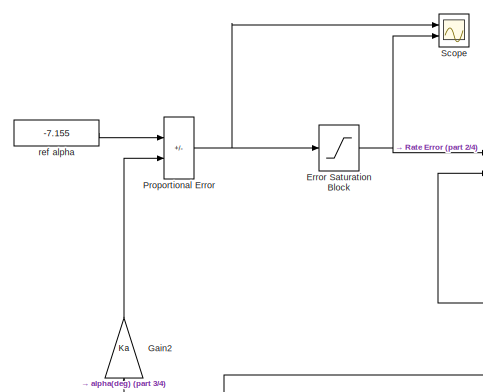
[diagram: root canvas - part 1/4, top left region]
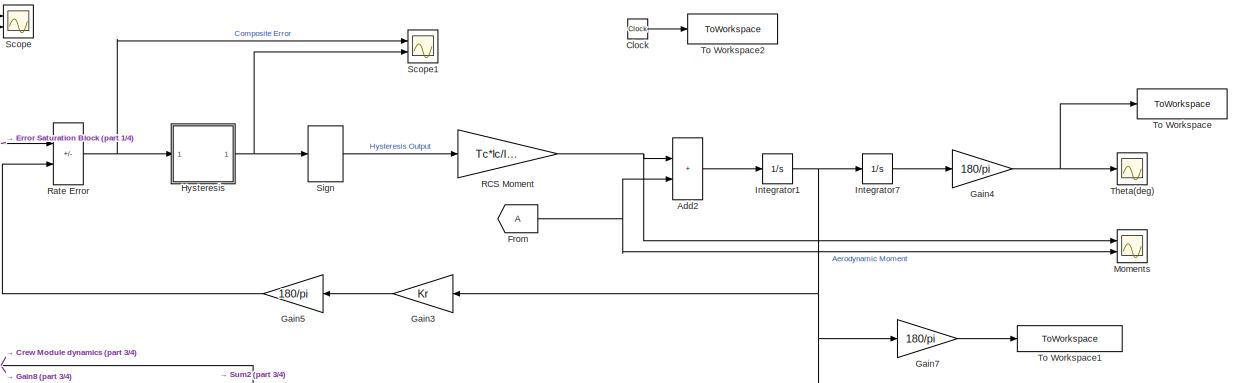
[diagram: root canvas - part 2/4, top center region]
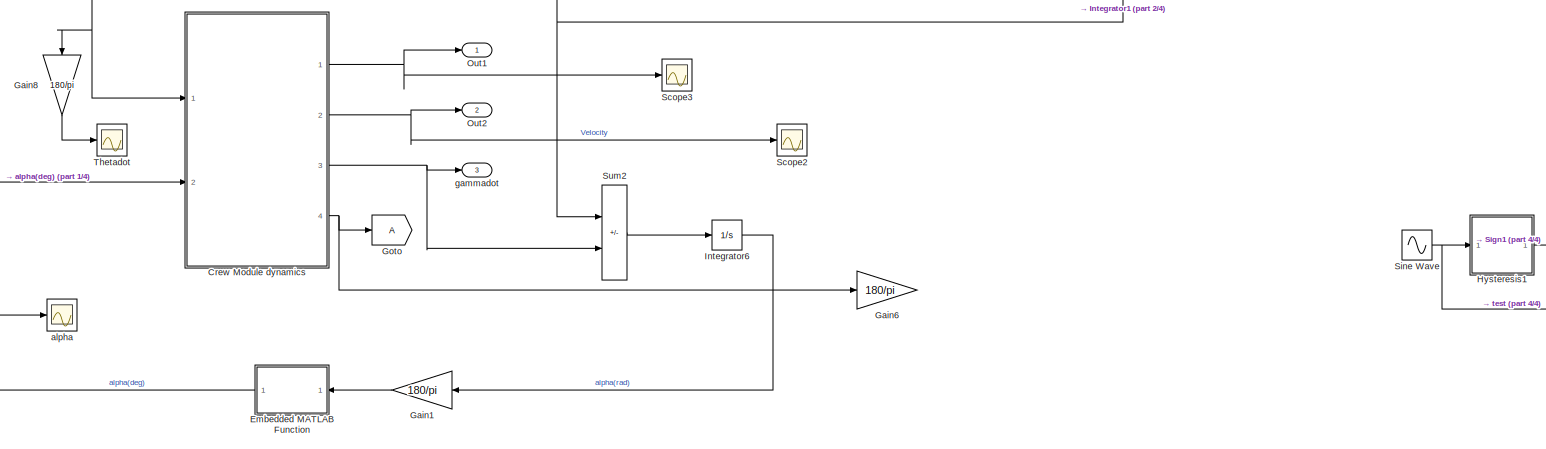
[diagram: root canvas - part 3/4, full width, bottom band]
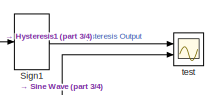
[diagram: root canvas - part 4/4, bottom right region]
MODEL slx_d98ad95d32de
KIND model
CONFIG AbsTol = auto
CONFIG EnableMultiTasking = off
CONFIG FixedStep = 0.01
CONFIG MaxStep = auto
CONFIG MinStep = auto
CONFIG RelTol = 1e-3
CONFIG SampleTimeConstraint = Unconstrained
CONFIG Solver = ode4
CONFIG SolverName = ode4
CONFIG StartTime = 0.0
CONFIG StopTime = 200
BLOCK [Sum] Add2
  IconShape = rectangular
  Ports = [2, 1]
BLOCK [Clock] Clock
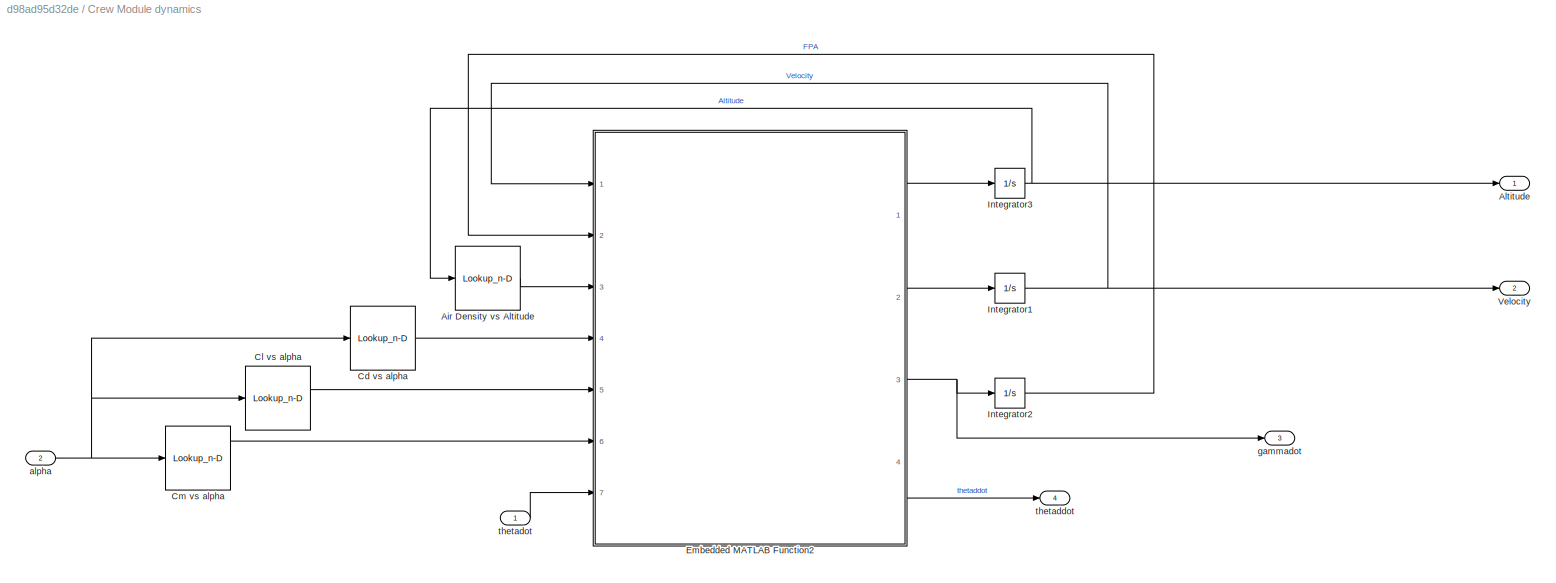
BLOCK [SubSystem] Crew Module dynamics
  Ports = [2, 4]
  RequestExecContextInheritance = off
BLOCK [Lookup_n-D] Crew Module dynamics/Air Density vs Altitude
  BreakpointsForDimension1 = [0,1000,2000,3000,4000,5000,6000,7000,8000,9000,10000,12000,15000]
  InternalRulePriority = Speed
  NumberOfTableDimensions = 1
  Ports = [1, 1]
  RndMeth = Simplest
  Table = [1.225,1.11164,1.00649,0.909122,0.819129,0.736116,0.659697,0.589501,0.525168,0.466348,0.412707,0.310828,0.193674]
BLOCK [Outport] Crew Module dynamics/Altitude
BLOCK [Lookup_n-D] Crew Module dynamics/Cd vs alpha
  BreakpointsForDimension1 = alpha
  NumberOfTableDimensions = 1
  Ports = [1, 1]
  RndMeth = Simplest
  Table = Cd
BLOCK [Lookup_n-D] Crew Module dynamics/Cl vs alpha
  BreakpointsForDimension1 = alpha
  NumberOfTableDimensions = 1
  Ports = [1, 1]
  RndMeth = Simplest
  Table = Cl
BLOCK [Lookup_n-D] Crew Module dynamics/Cm vs alpha
  BreakpointsForDimension1 = alpha
  NumberOfTableDimensions = 1
  Ports = [1, 1]
  RndMeth = Simplest
  Table = Cmcg
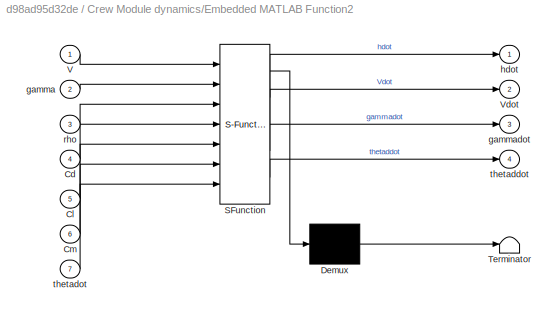
BLOCK [SubSystem] Crew Module dynamics/Embedded MATLAB Function2
  ErrorFcn = Stateflow.Translate.translate
  PermitHierarchicalResolution = ExplicitOnly
  Ports = [7, 4]
  RequestExecContextInheritance = off
  SFBlockType = MATLAB Function
  TreatAsAtomicUnit = on
BLOCK [Demux] Crew Module dynamics/Embedded MATLAB Function2/ Demux 
  Outputs = 1
  Ports = [1, 1]
BLOCK [S-Function] Crew Module dynamics/Embedded MATLAB Function2/ SFunction 
  EnableBusSupport = on
  FunctionName = sf_sfun
  Parameters = A,Cmalphadot,Cmq,D,Iyy,R,g,m
  PortCounts = [7 5]
  Ports = [7, 5]
  SFcnIsStateOwnerBlock = off
  SFunctionDeploymentMode = off
  Tag = Stateflow S-Function 5
BLOCK [Terminator] Crew Module dynamics/Embedded MATLAB Function2/ Terminator 
BLOCK [Inport] Crew Module dynamics/Embedded MATLAB Function2/Cd
  Port = 4
BLOCK [Inport] Crew Module dynamics/Embedded MATLAB Function2/Cl
  Port = 5
BLOCK [Inport] Crew Module dynamics/Embedded MATLAB Function2/Cm
  Port = 6
BLOCK [Inport] Crew Module dynamics/Embedded MATLAB Function2/V
BLOCK [Outport] Crew Module dynamics/Embedded MATLAB Function2/Vdot
  Port = 2
BLOCK [Inport] Crew Module dynamics/Embedded MATLAB Function2/gamma
  Port = 2
BLOCK [Outport] Crew Module dynamics/Embedded MATLAB Function2/gammadot
  Port = 3
BLOCK [Outport] Crew Module dynamics/Embedded MATLAB Function2/hdot
BLOCK [Inport] Crew Module dynamics/Embedded MATLAB Function2/rho
  Port = 3
BLOCK [Outport] Crew Module dynamics/Embedded MATLAB Function2/thetaddot
  Port = 4
BLOCK [Inport] Crew Module dynamics/Embedded MATLAB Function2/thetadot
  Port = 7
BLOCK [Integrator] Crew Module dynamics/Integrator1
  InitialCondition = 68
  Ports = [1, 1]
BLOCK [Integrator] Crew Module dynamics/Integrator2
  InitialCondition = 1*pi/180
  Ports = [1, 1]
BLOCK [Integrator] Crew Module dynamics/Integrator3
  InitialCondition = 13240
  Ports = [1, 1]
BLOCK [Outport] Crew Module dynamics/Velocity
  Port = 2
BLOCK [Inport] Crew Module dynamics/alpha
  Port = 2
BLOCK [Outport] Crew Module dynamics/gammadot
  Port = 3
BLOCK [Outport] Crew Module dynamics/thetaddot
  Port = 4
BLOCK [Inport] Crew Module dynamics/thetadot
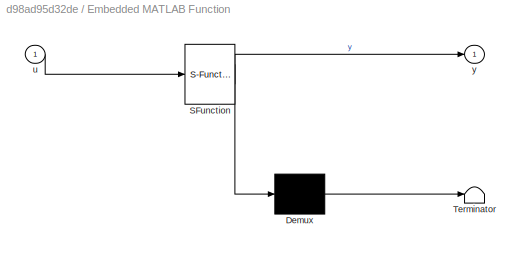
BLOCK [SubSystem] Embedded MATLAB Function
  ErrorFcn = Stateflow.Translate.translate
  NameLocation = top
  PermitHierarchicalResolution = ExplicitOnly
  Ports = [1, 1]
  RequestExecContextInheritance = off
  SFBlockType = MATLAB Function
  TreatAsAtomicUnit = on
BLOCK [Demux] Embedded MATLAB Function/ Demux 
  Outputs = 1
  Ports = [1, 1]
BLOCK [S-Function] Embedded MATLAB Function/ SFunction 
  EnableBusSupport = on
  FunctionName = sf_sfun
  PortCounts = [1 2]
  Ports = [1, 2]
  SFcnIsStateOwnerBlock = off
  SFunctionDeploymentMode = off
  Tag = Stateflow S-Function 3
BLOCK [Terminator] Embedded MATLAB Function/ Terminator 
BLOCK [Inport] Embedded MATLAB Function/u
BLOCK [Outport] Embedded MATLAB Function/y
BLOCK [Saturate] Error Saturation Block
  LowerLimit = -RCL
  UpperLimit = RCL
BLOCK [From] From
BLOCK [Gain] Gain1
  Gain = 180/pi
  OutDataTypeStr = Inherit: Same as input
  ParamDataTypeStr = Inherit: Same as input
  SaturateOnIntegerOverflow = on
BLOCK [Gain] Gain2
  Gain = Ka
  NameLocation = left
  OutDataTypeStr = Inherit: Same as input
  ParamDataTypeStr = Inherit: Same as input
  SaturateOnIntegerOverflow = on
BLOCK [Gain] Gain3
  Gain = Kr
  OutDataTypeStr = Inherit: Same as input
  ParamDataTypeStr = Inherit: Same as input
  SaturateOnIntegerOverflow = on
BLOCK [Gain] Gain4
  Gain = 180/pi
  NameLocation = top
  OutDataTypeStr = Inherit: Same as input
  ParamDataTypeStr = Inherit: Same as input
  SaturateOnIntegerOverflow = on
BLOCK [Gain] Gain5
  Gain = 180/pi
  OutDataTypeStr = Inherit: Same as input
  ParamDataTypeStr = Inherit: Same as input
  SaturateOnIntegerOverflow = on
BLOCK [Gain] Gain6
  Gain = 180/pi
  NameLocation = top
  OutDataTypeStr = Inherit: Same as input
  ParamDataTypeStr = Inherit: Same as input
  SaturateOnIntegerOverflow = on
BLOCK [Gain] Gain7
  Gain = 180/pi
  NameLocation = top
  OutDataTypeStr = Inherit: Same as input
  ParamDataTypeStr = Inherit: Same as input
  SaturateOnIntegerOverflow = on
BLOCK [Gain] Gain8
  Gain = 180/pi
  NameLocation = right
  OutDataTypeStr = Inherit: Same as input
  ParamDataTypeStr = Inherit: Same as input
  SaturateOnIntegerOverflow = on
BLOCK [Goto] Goto
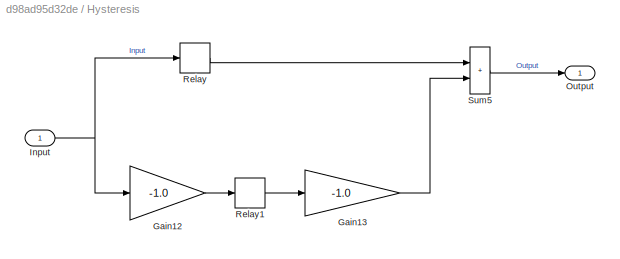
BLOCK [SubSystem] Hysteresis
  Ports = [1, 1]
  RequestExecContextInheritance = off
BLOCK [Gain] Hysteresis/Gain12
  Gain = -1.0
  OutDataTypeStr = Inherit: Same as input
  ParamDataTypeStr = Inherit: Same as input
  SaturateOnIntegerOverflow = on
BLOCK [Gain] Hysteresis/Gain13
  Gain = -1.0
  OutDataTypeStr = Inherit: Same as input
  ParamDataTypeStr = Inherit: Same as input
  SaturateOnIntegerOverflow = on
BLOCK [Inport] Hysteresis/Input
BLOCK [Outport] Hysteresis/Output
BLOCK [Relay] Hysteresis/Relay
  OffSwitchValue = LTP
  OnSwitchValue = UTP
BLOCK [Relay] Hysteresis/Relay1
  OffSwitchValue = LTP
  OnSwitchValue = UTP
BLOCK [Sum] Hysteresis/Sum5
  IconShape = rectangular
  InputSameDT = on
  OutDataTypeStr = Inherit: Same as first input
  Ports = [2, 1]
  SaturateOnIntegerOverflow = on
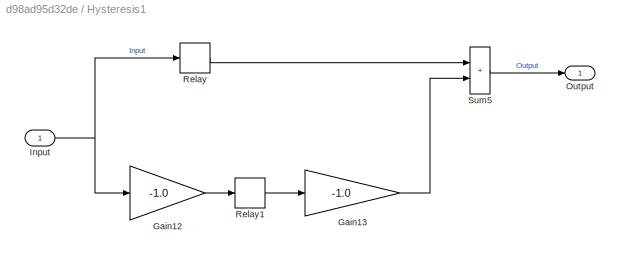
BLOCK [SubSystem] Hysteresis1
  Commented = through
  Ports = [1, 1]
  RequestExecContextInheritance = off
BLOCK [Gain] Hysteresis1/Gain12
  Gain = -1.0
  OutDataTypeStr = Inherit: Same as input
  ParamDataTypeStr = Inherit: Same as input
  SaturateOnIntegerOverflow = on
BLOCK [Gain] Hysteresis1/Gain13
  Gain = -1.0
  OutDataTypeStr = Inherit: Same as input
  ParamDataTypeStr = Inherit: Same as input
  SaturateOnIntegerOverflow = on
BLOCK [Inport] Hysteresis1/Input
BLOCK [Outport] Hysteresis1/Output
BLOCK [Relay] Hysteresis1/Relay
  OffSwitchValue = LTP
  OnSwitchValue = UTP
BLOCK [Relay] Hysteresis1/Relay1
  OffSwitchValue = LTP
  OnSwitchValue = UTP
BLOCK [Sum] Hysteresis1/Sum5
  IconShape = rectangular
  InputSameDT = on
  OutDataTypeStr = Inherit: Same as first input
  Ports = [2, 1]
  SaturateOnIntegerOverflow = on
BLOCK [Integrator] Integrator1
  Ports = [1, 1]
BLOCK [Integrator] Integrator6
  InitialCondition = 150*pi/180
  Ports = [1, 1]
BLOCK [Integrator] Integrator7
  InitialCondition = -2*pi/180
  Ports = [1, 1]
BLOCK [Scope] Moments
  Floating = off
  NumInputPorts = 2
  Ports = [2]
  ScopeSpecificationString = Simulink.scopes.TimeScopeBlockCfg('CurrentConfiguration', extmgr.ConfigurationSet(extmgr.Configuration('Core','General UI',true),extmgr.Configuration('Core','Source UI',true),extmgr.Configuration('Sources','WiredSimulink',true,'DataLoggingVariableName','ScopeData3'),extmgr.Configuration('Visuals','Time Domain',true,'SerializedDisplays',{struct('MinYLimReal','-2.07581','MaxYLimReal','1.90453','YLab...<+1435ch>
BLOCK [Outport] Out1
BLOCK [Outport] Out2
  Port = 2
BLOCK [Sum] Proportional Error
  IconShape = rectangular
  Inputs = +-
  Ports = [2, 1]
BLOCK [Gain] RCS Moment
  Gain = Tc*lc/Iyy
  NameLocation = top
  OutDataTypeStr = Inherit: Same as input
  ParamDataTypeStr = Inherit: Same as input
  SaturateOnIntegerOverflow = on
BLOCK [Sum] Rate Error
  IconShape = rectangular
  Inputs = +-
  Ports = [2, 1]
BLOCK [Scope] Scope
  Floating = off
  NumInputPorts = 2
  Ports = [2]
  ScopeSpecificationString = Simulink.scopes.TimeScopeBlockCfg('CurrentConfiguration', extmgr.ConfigurationSet(extmgr.Configuration('Core','General UI',true),extmgr.Configuration('Core','Source UI',true),extmgr.Configuration('Sources','WiredSimulink',true,'DataLoggingVariableName','ScopeData4'),extmgr.Configuration('Visuals','Time Domain',true,'SerializedDisplays',{struct('MinYLimReal','-192.92303','MaxYLimReal','150.74598','...<+1460ch>
BLOCK [Scope] Scope1
  Floating = off
  NumInputPorts = 2
  Ports = [2]
  ScopeSpecificationString = Simulink.scopes.TimeScopeBlockCfg('CurrentConfiguration', extmgr.ConfigurationSet(extmgr.Configuration('Core','General UI',true),extmgr.Configuration('Core','Source UI',true),extmgr.Configuration('Sources','WiredSimulink',true,'DataLoggingVariableName','ScopeData5'),extmgr.Configuration('Visuals','Time Domain',true,'SerializedDisplays',{struct('MinYLimReal','-17.97148','MaxYLimReal','31.74335','YL...<+1493ch>
BLOCK [Scope] Scope2
  Floating = off
  NumInputPorts = 1
  Ports = [1]
  ScopeSpecificationString = Simulink.scopes.TimeScopeBlockCfg('CurrentConfiguration', extmgr.ConfigurationSet(extmgr.Configuration('Core','General UI',true),extmgr.Configuration('Core','Source UI',true),extmgr.Configuration('Sources','WiredSimulink',true,'DataLoggingVariableName','ScopeData2'),extmgr.Configuration('Visuals','Time Domain',true,'SerializedDisplays',{struct('MinYLimReal','52.48862','MaxYLimReal','151.87606','YL...<+1377ch>
BLOCK [Scope] Scope3
  Floating = off
  NumInputPorts = 1
  Ports = [1]
  ScopeSpecificationString = Simulink.scopes.TimeScopeBlockCfg('CurrentConfiguration', extmgr.ConfigurationSet(extmgr.Configuration('Core','General UI',true),extmgr.Configuration('Core','Source UI',true),extmgr.Configuration('Sources','WiredSimulink',true,'DataLoggingVariableName','ScopeData7'),extmgr.Configuration('Visuals','Time Domain',true,'SerializedDisplays',{struct('MinYLimReal','-6695.15088','MaxYLimReal','15455.09232...<+1414ch>
BLOCK [Signum] Sign
  ZeroCross = off
BLOCK [Signum] Sign1
  Commented = through
  ZeroCross = off
BLOCK [Sin] Sine Wave
  Amplitude = 10
  Ports = [0, 1]
  SampleTime = 0
BLOCK [Sum] Sum2
  IconShape = rectangular
  InputSameDT = on
  Inputs = +-
  OutDataTypeStr = Inherit: Same as first input
  Ports = [2, 1]
  SaturateOnIntegerOverflow = on
BLOCK [Scope] Theta(deg)
  Floating = off
  NumInputPorts = 1
  Ports = [1]
  ScopeSpecificationString = Simulink.scopes.TimeScopeBlockCfg('CurrentConfiguration', extmgr.ConfigurationSet(extmgr.Configuration('Core','General UI',true),extmgr.Configuration('Core','Source UI',true),extmgr.Configuration('Sources','WiredSimulink',true),extmgr.Configuration('Visuals','Time Domain',true,'SerializedDisplays',{struct('MinYLimReal','-366.63431','MaxYLimReal','38.51492','YLabelReal','','MinYLimMag',' 0.00000','...<+1337ch>
BLOCK [Scope] Thetadot
  Floating = off
  NumInputPorts = 1
  Ports = [1]
  ScopeSpecificationString = Simulink.scopes.TimeScopeBlockCfg('CurrentConfiguration', extmgr.ConfigurationSet(extmgr.Configuration('Core','General UI',true),extmgr.Configuration('Core','Source UI',true),extmgr.Configuration('Sources','WiredSimulink',true,'DataLoggingVariableName','ScopeData8'),extmgr.Configuration('Visuals','Time Domain',true,'SerializedDisplays',{struct('MinYLimReal','-16.42157','MaxYLimReal','7.96787','YLa...<+1439ch>
BLOCK [ToWorkspace] To Workspace
  FixptAsFi = on
  MaxDataPoints = inf
  Ports = [1]
  SampleTime = -1
  VariableName = theta_sim
BLOCK [ToWorkspace] To Workspace1
  FixptAsFi = on
  MaxDataPoints = inf
  Ports = [1]
  SampleTime = -1
  VariableName = thetadot_sim
BLOCK [ToWorkspace] To Workspace2
  FixptAsFi = on
  MaxDataPoints = inf
  Ports = [1]
  SampleTime = -1
  VariableName = time_sim
BLOCK [Scope] alpha
  Floating = off
  NumInputPorts = 1
  Ports = [1]
  ScopeSpecificationString = Simulink.scopes.TimeScopeBlockCfg('CurrentConfiguration', extmgr.ConfigurationSet(extmgr.Configuration('Core','General UI',true),extmgr.Configuration('Core','Source UI',true),extmgr.Configuration('Sources','WiredSimulink',true,'DataLoggingVariableName','ScopeData1'),extmgr.Configuration('Visuals','Time Domain',true,'SerializedDisplays',{struct('MinYLimReal','-159.9753','MaxYLimReal','185.99772','Y...<+1481ch>
BLOCK [Outport] gammadot
  Port = 3
BLOCK [Constant] ref alpha
  Value = -7.155
BLOCK [Scope] test
  Floating = off
  NumInputPorts = 2
  Ports = [2]
  ScopeSpecificationString = Simulink.scopes.TimeScopeBlockCfg('CurrentConfiguration', extmgr.ConfigurationSet(extmgr.Configuration('Core','General UI',true),extmgr.Configuration('Core','Source UI',true),extmgr.Configuration('Sources','WiredSimulink',true,'DataLoggingVariableName','ScopeData6'),extmgr.Configuration('Visuals','Time Domain',true,'SerializedDisplays',{struct('MinYLimReal','-1.10211','MaxYLimReal','1.03652','YLab...<+1811ch>
LINE Add2:1 -> Integrator1:1
LINE Clock:1 -> To Workspace2:1
LINE Crew Module dynamics/Air Density vs Altitude:1 -> Crew Module dynamics/Embedded MATLAB Function2:3
LINE Crew Module dynamics/Cd vs alpha:1 -> Crew Module dynamics/Embedded MATLAB Function2:4
LINE Crew Module dynamics/Cl vs alpha:1 -> Crew Module dynamics/Embedded MATLAB Function2:5
LINE Crew Module dynamics/Cm vs alpha:1 -> Crew Module dynamics/Embedded MATLAB Function2:6
LINE Crew Module dynamics/Embedded MATLAB Function2:1 -> Crew Module dynamics/Integrator3:1
LINE Crew Module dynamics/Embedded MATLAB Function2:2 -> Crew Module dynamics/Integrator1:1
NET Crew Module dynamics/Embedded MATLAB Function2:3 -> Crew Module dynamics/Integrator2:1, Crew Module dynamics/gammadot:1
LINE Crew Module dynamics/Embedded MATLAB Function2:4 -> Crew Module dynamics/thetaddot:1
NET Crew Module dynamics/Integrator1:1 -> Crew Module dynamics/Embedded MATLAB Function2:1, Crew Module dynamics/Velocity:1
LINE Crew Module dynamics/Integrator2:1 -> Crew Module dynamics/Embedded MATLAB Function2:2
NET Crew Module dynamics/Integrator3:1 -> Crew Module dynamics/Air Density vs Altitude:1, Crew Module dynamics/Altitude:1
NET Crew Module dynamics/alpha:1 -> Crew Module dynamics/Cd vs alpha:1, Crew Module dynamics/Cl vs alpha:1, Crew Module dynamics/Cm vs alpha:1
LINE Crew Module dynamics/thetadot:1 -> Crew Module dynamics/Embedded MATLAB Function2:7
NET Crew Module dynamics:1 -> Out1:1, Scope3:1
NET Crew Module dynamics:2 -> Out2:1, Scope2:1
NET Crew Module dynamics:3 -> Sum2:2, gammadot:1
NET Crew Module dynamics:4 -> Gain6:1, Goto:1
NET Embedded MATLAB Function:1 -> Crew Module dynamics:2, Gain2:1, alpha:1
NET Error Saturation Block:1 -> Rate Error:1, Scope:2
NET From:1 -> Add2:2, Moments:2
LINE Gain1:1 -> Embedded MATLAB Function:1
LINE Gain2:1 -> Proportional Error:2
LINE Gain3:1 -> Gain5:1
NET Gain4:1 -> Theta(deg):1, To Workspace:1
LINE Gain5:1 -> Rate Error:2
LINE Gain7:1 -> To Workspace1:1
LINE Gain8:1 -> Thetadot:1
LINE Hysteresis/Gain12:1 -> Hysteresis/Relay1:1
LINE Hysteresis/Gain13:1 -> Hysteresis/Sum5:2
NET Hysteresis/Input:1 -> Hysteresis/Gain12:1, Hysteresis/Relay:1
LINE Hysteresis/Relay1:1 -> Hysteresis/Gain13:1
LINE Hysteresis/Relay:1 -> Hysteresis/Sum5:1
LINE Hysteresis/Sum5:1 -> Hysteresis/Output:1
LINE Hysteresis1/Gain12:1 -> Hysteresis1/Relay1:1
LINE Hysteresis1/Gain13:1 -> Hysteresis1/Sum5:2
NET Hysteresis1/Input:1 -> Hysteresis1/Gain12:1, Hysteresis1/Relay:1
LINE Hysteresis1/Relay1:1 -> Hysteresis1/Gain13:1
LINE Hysteresis1/Relay:1 -> Hysteresis1/Sum5:1
LINE Hysteresis1/Sum5:1 -> Hysteresis1/Output:1
LINE Hysteresis1:1 -> Sign1:1
NET Hysteresis:1 -> Scope1:2, Sign:1
NET Integrator1:1 -> Crew Module dynamics:1, Gain3:1, Gain7:1, Gain8:1, Integrator7:1, Sum2:1
LINE Integrator6:1 -> Gain1:1
LINE Integrator7:1 -> Gain4:1
NET Proportional Error:1 -> Error Saturation Block:1, Scope:1
NET RCS Moment:1 -> Add2:1, Moments:1
NET Rate Error:1 -> Hysteresis:1, Scope1:1
LINE Sign1:1 -> test:1
LINE Sign:1 -> RCS Moment:1
NET Sine Wave:1 -> Hysteresis1:1, test:2
LINE Sum2:1 -> Integrator6:1
LINE ref alpha:1 -> Proportional Error:1
note: NET lines group one-source signal fan-out (src -> all destinations, sorted); 1:1 wires keep LINE
CHART Embedded
MATLAB Function states=1 transitions=1
  STATE_LABEL 'eML_blk_kernel()'
  STATE_LABEL 'SCRIPT:\nfunction y = fcn(u)\n%#eml\n% if(u>0)\n%     y = mod(u,360);\n%     if(y > 180)\n%        y = -180 + (y - 180);\n%     end\n%     \n% else\n%     y = -u;\n%     y = -mod(y,360);\n%     if(y<-180)\n%         y = 180 - (-y + 180);\n%     end\n% end\n\nx = mod(u,360);\n\nif(x <= 180)\n    y=x;\nelse\n    y = x-360;\nend\nend\n'
CHART Crew Module dynamics/Embedded
MATLAB Function2 states=1 transitions=1
  STATE_LABEL 'eML_blk_kernel()'
  STATE_LABEL 'SCRIPT:\nfunction [hdot, Vdot, gammadot, thetaddot] = fcn(V, gamma, rho, Cd, A, m, g,...\n    Cl, R, Iyy, Cmq, D, Cmalphadot, Cm, thetadot)\n\nhdot = V*sin(gamma);\n\nVdot = -(rho*V*V*Cd*A)/m - g*sin(gamma);\n%  Vdot = 0;\n\ngammadot = (rho*V*Cl*A)/(2*m) - (g/V - V/R)*cos(gamma);\n% gammadot = 0;\n\nthetaddot = ((rho*V*V*A*D)/(2*Iyy))*(((-Cmq-Cmalphadot)*thetadot*D)/(2*V) ...\n     + Cm);                      ...<+79ch>'
CHART  states=0 transitions=0
CHART  states=0 transitions=0
